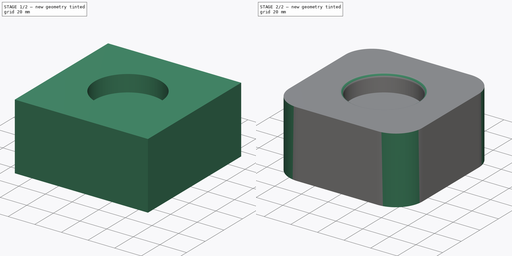
[diagram: build sequence overview — one tinted view per stage of 2, left to right]
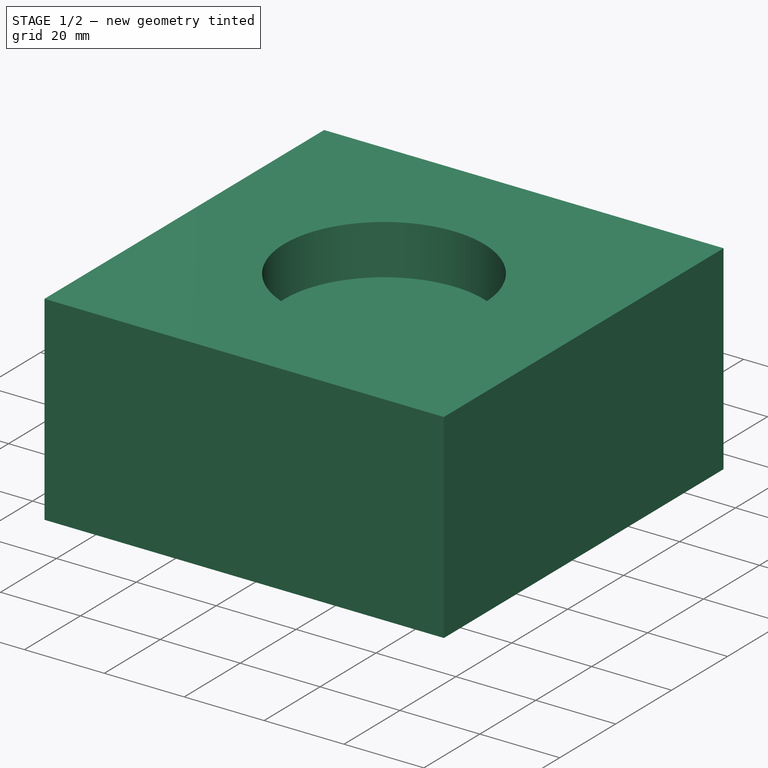
[diagram: stage 1 of 2 — iso view after this stage's code; geometry added in this stage tinted green]
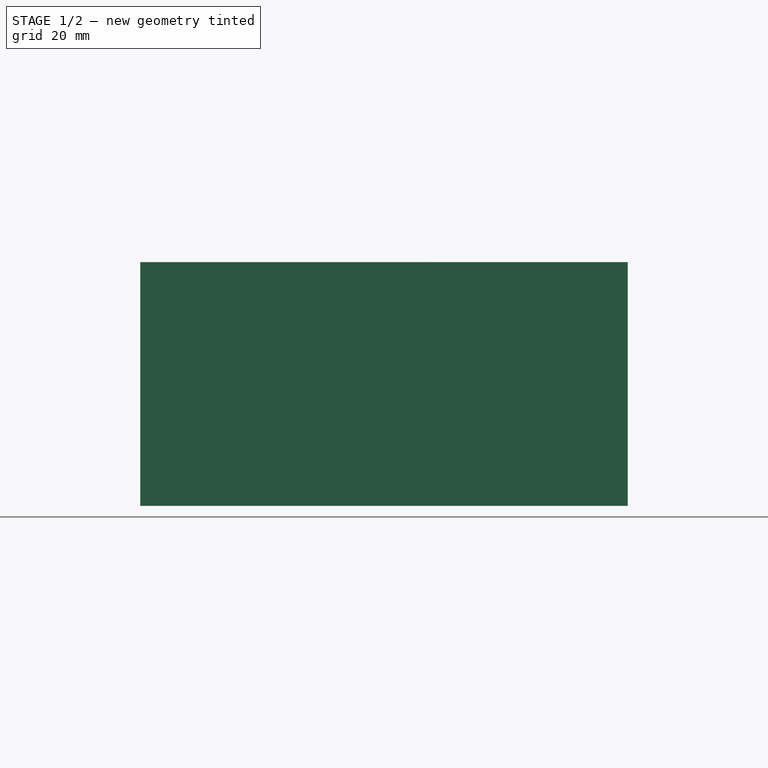
[diagram: stage 1 of 2 — front view after this stage's code; geometry added in this stage tinted green]
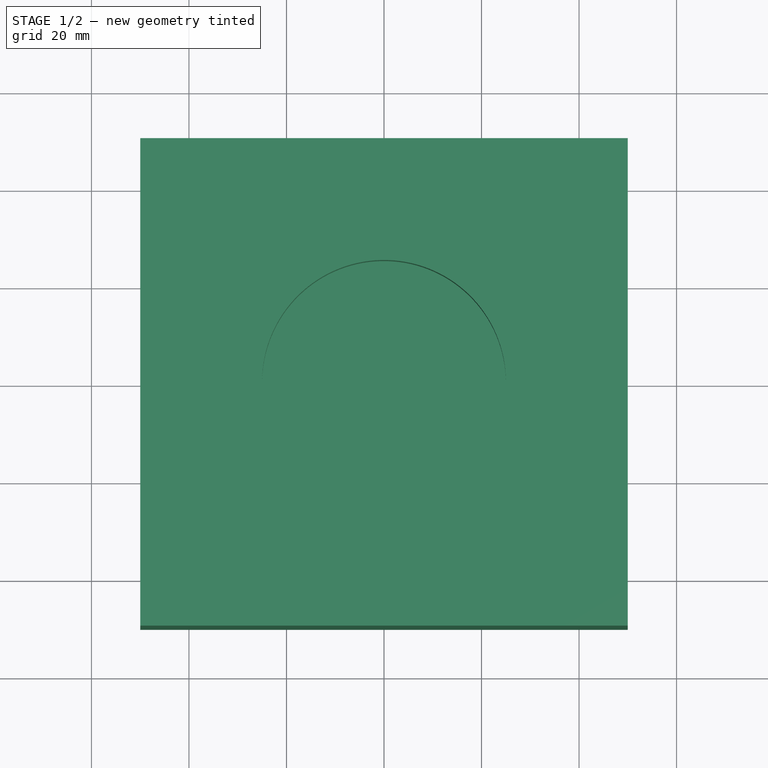
[diagram: stage 1 of 2 — top view after this stage's code; geometry added in this stage tinted green]
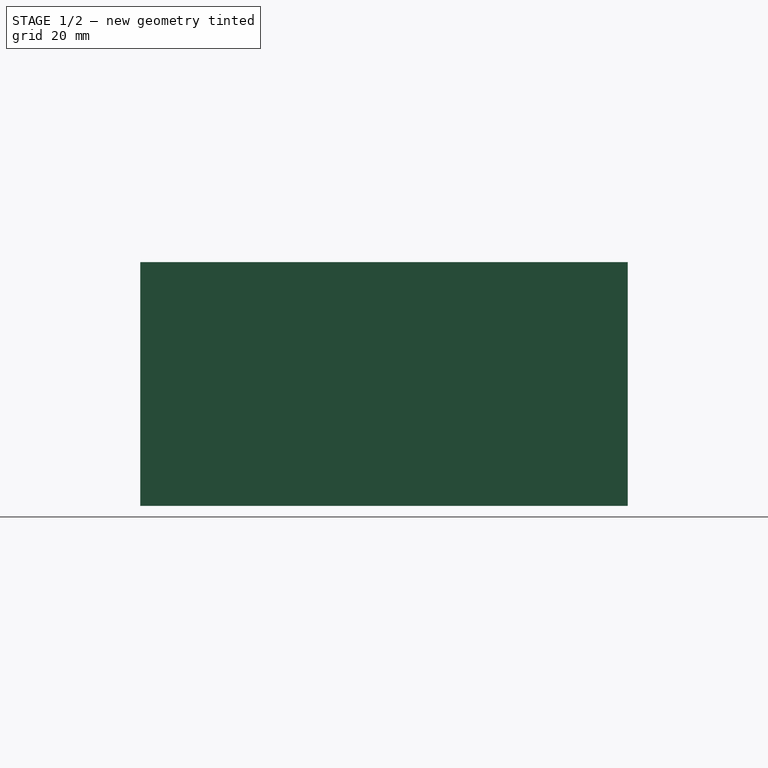
[diagram: stage 1 of 2 — right view after this stage's code; geometry added in this stage tinted green]
FCSTD DOCUMENT  (FreeCAD 0.18R16093 +53 (Git))
Label: tutorial
License: All rights reserved
LicenseURL: http://en.wikipedia.org/wiki/All_rights_reserved
objects: Sketcher::SketchObject×2, PartDesign::Fillet×2, PartDesign::Pad×1, PartDesign::Pocket×1, PartDesign::Body×1, Spreadsheet::Sheet×1
note: 9 computed .brp shape members not serialized (recipe doc carries the construction recipe); baked Part::Feature solids carry a one-line shape summary decoded from their .brp

FEATURE [Sketcher::SketchObject] Sketch
  MapMode = 5
  Support = -> [XY_Plane]
  expr: Constraints[9] = parameters.length
  expr: Constraints[8] = parameters.width
  sketch-geometry (4):
    g0: LineSegment StartX=-50 StartY=50 StartZ=0 EndX=50 EndY=50 EndZ=0
    g1: LineSegment StartX=50 StartY=50 StartZ=0 EndX=50 EndY=-50 EndZ=0
    g2: LineSegment StartX=50 StartY=-50 StartZ=0 EndX=-50 EndY=-50 EndZ=0
    g3: LineSegment StartX=-50 StartY=-50 StartZ=0 EndX=-50 EndY=50 EndZ=0
  constraints (11):
    c: Coincident(g0,g1)
    c: Coincident(g1,g2)
    c: Coincident(g2,g3)
    c: Coincident(g3,g0)
    c: Horizontal(g0)
    c: Horizontal(g2)
    c: Vertical(g1)
    c: Vertical(g3)
    c: Distance(g0) = 100
    c: Distance(g1) = 100
    c: Symmetric(g0,g1,g-1)
FEATURE [PartDesign::Pad] Pad  label="cube"
  Length = 50
  Length2 = 100
  Profile = -> Sketch
  Type = 0
  expr: Length = parameters.height
FEATURE [Sketcher::SketchObject] Sketch001  label="circle"
  MapMode = 5
  Placement = pos=(0,0,50) rot=(0,0,1;0rad)
  Support = -> [Pad]
  expr: Constraints[0] = parameters.pocket_diameter
  sketch-geometry (1):
    g0: Circle CenterX=0 CenterY=0 CenterZ=0 NormalX=0 NormalY=0 NormalZ=1 AngleXU=0 Radius=25
  constraints (2):
    c: Radius(g0) = 25
    c: Coincident(g0,g-1)
FEATURE [PartDesign::Pocket] Pocket
  BaseFeature = -> Pad
  Length = 12.5
  Length2 = 100
  Profile = -> Sketch001
  Type = 0
  expr: Length = parameters.pocket_cut
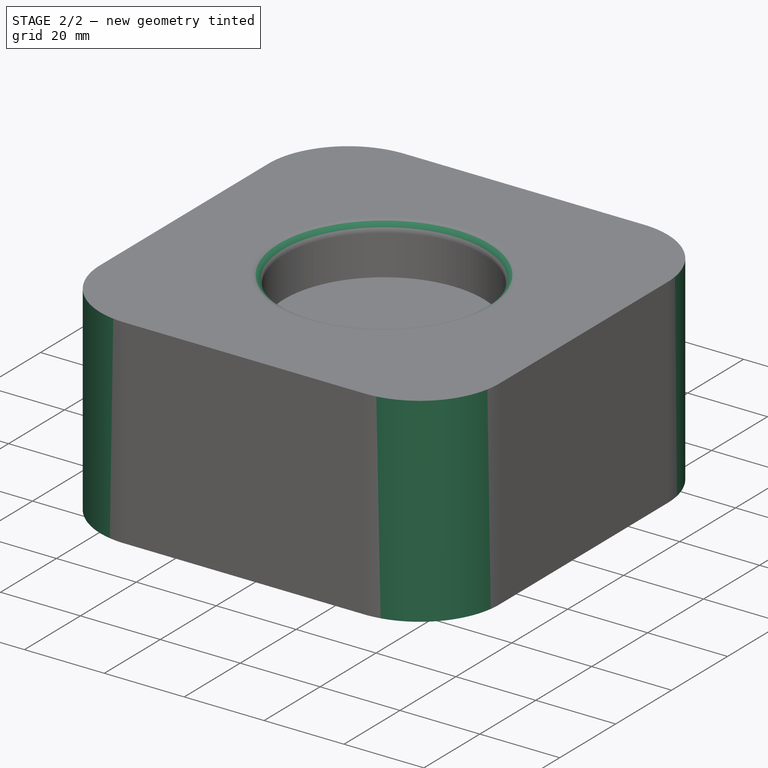
[diagram: stage 2 of 2 — iso view after this stage's code; geometry added in this stage tinted green]
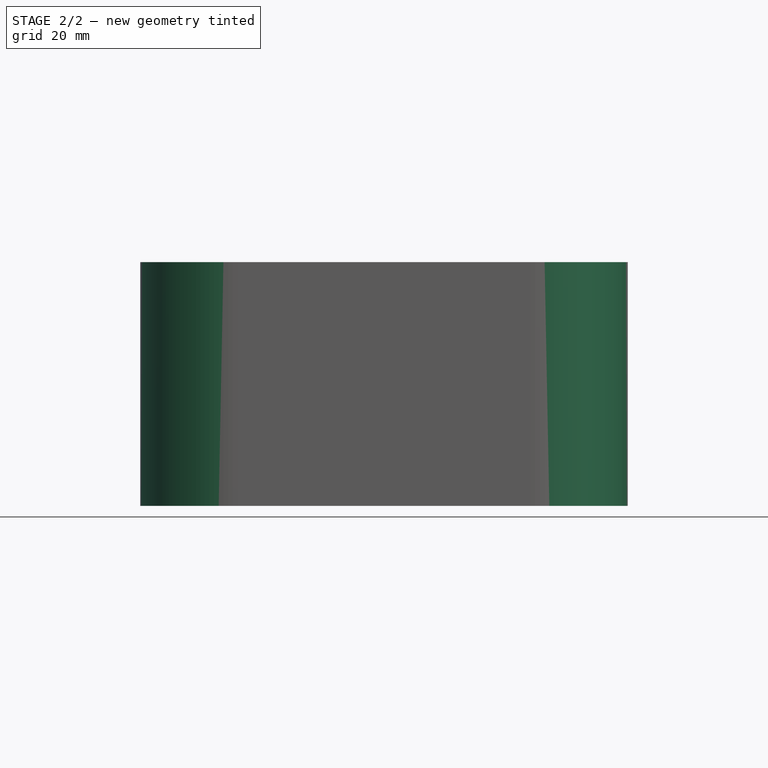
[diagram: stage 2 of 2 — front view after this stage's code; geometry added in this stage tinted green]
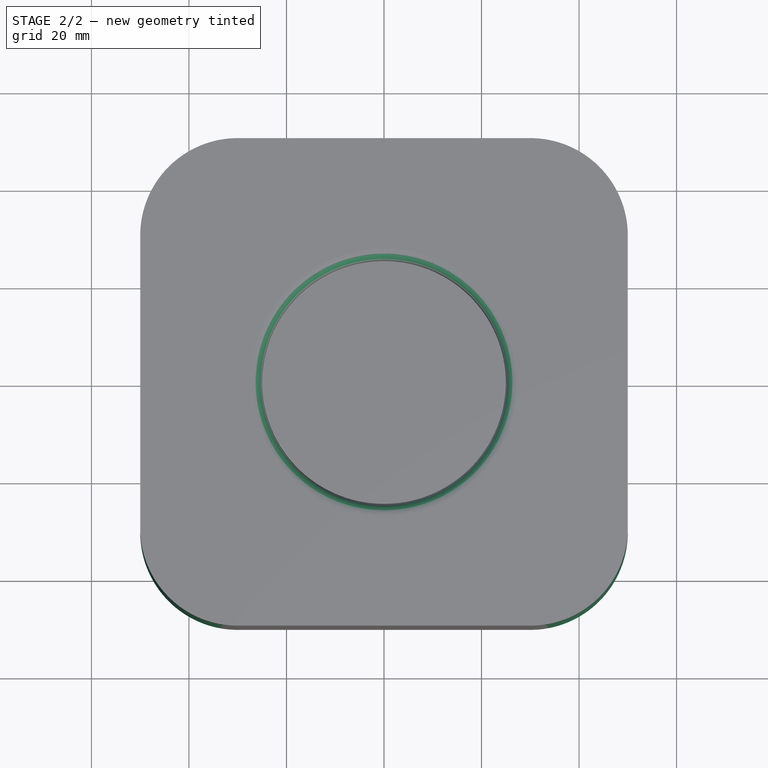
[diagram: stage 2 of 2 — top view after this stage's code; geometry added in this stage tinted green]
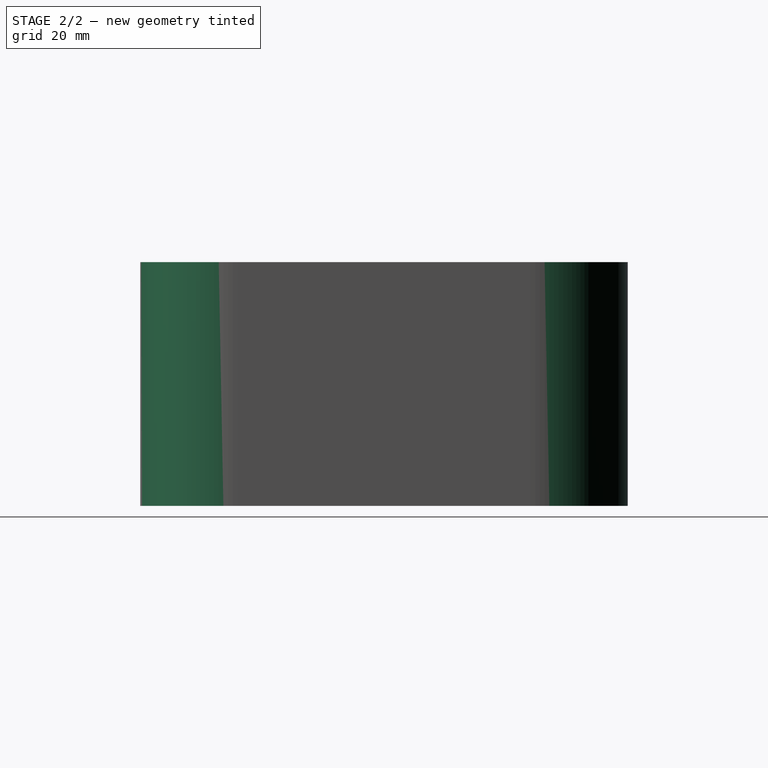
[diagram: stage 2 of 2 — right view after this stage's code; geometry added in this stage tinted green]
FEATURE [PartDesign::Fillet] Fillet  label="Corner Fillet"
  Base = -> Pocket [Edge8,Edge2,Edge1,Edge5]
  BaseFeature = -> Pocket
  Radius = 20
  expr: Radius = parameters.corner_fillet
FEATURE [PartDesign::Fillet] Fillet001
  Base = -> Fillet [Edge21]
  BaseFeature = -> Fillet
  Radius = 2.5
FEATURE [PartDesign::Body] Body
  Group = -> [Sketch,Pad,Sketch001,Pocket,Fillet,Fillet001]
  Origin = -> Origin
  Tip = -> Fillet001
FEATURE [Spreadsheet::Sheet] Spreadsheet  label="parameters"
  cells = A1=Width; B1(width)=100; A2=Length; B2(length)=100; A3=Pocket Diameter; B3(pocket_diameter)=25; A4=Height; B4(height)=50; A5=Pocket Cut; B5(pocket_cut)=12.5; A6=Corner Fillet; B6(corner_fillet)=20
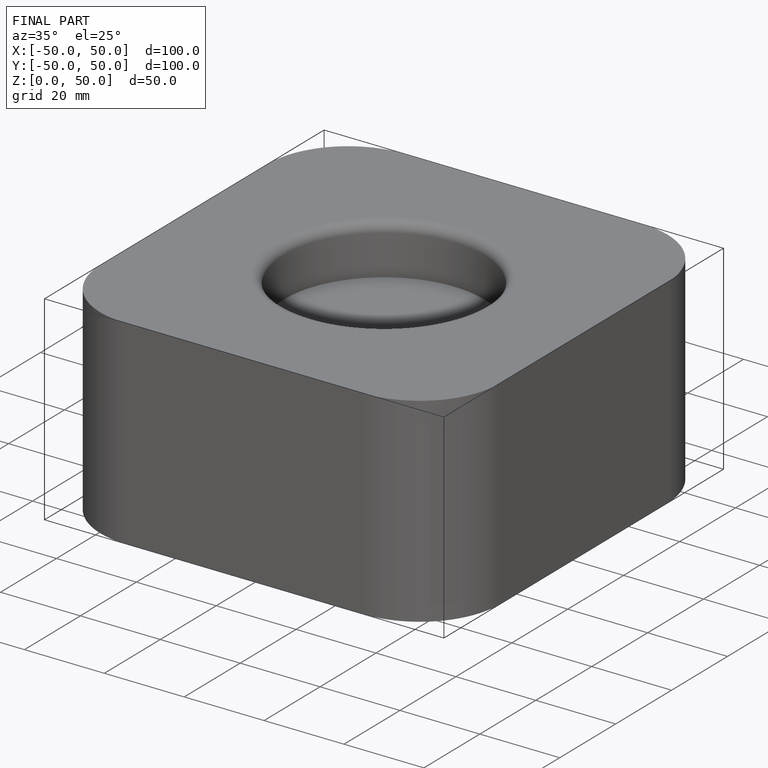
[diagram: finished part — iso view with bounding-box wireframe]
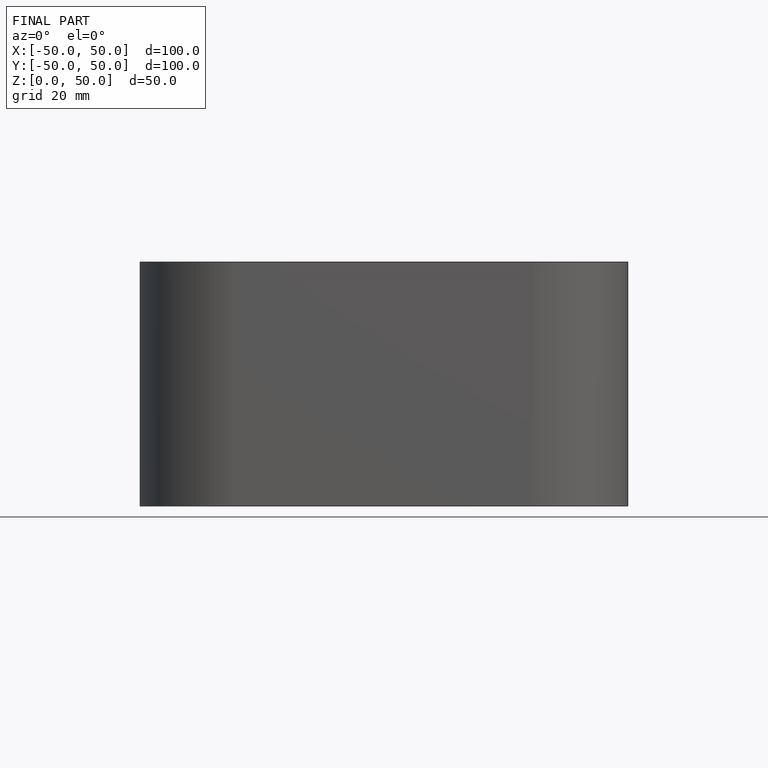
[diagram: finished part — front view with bounding-box wireframe]
